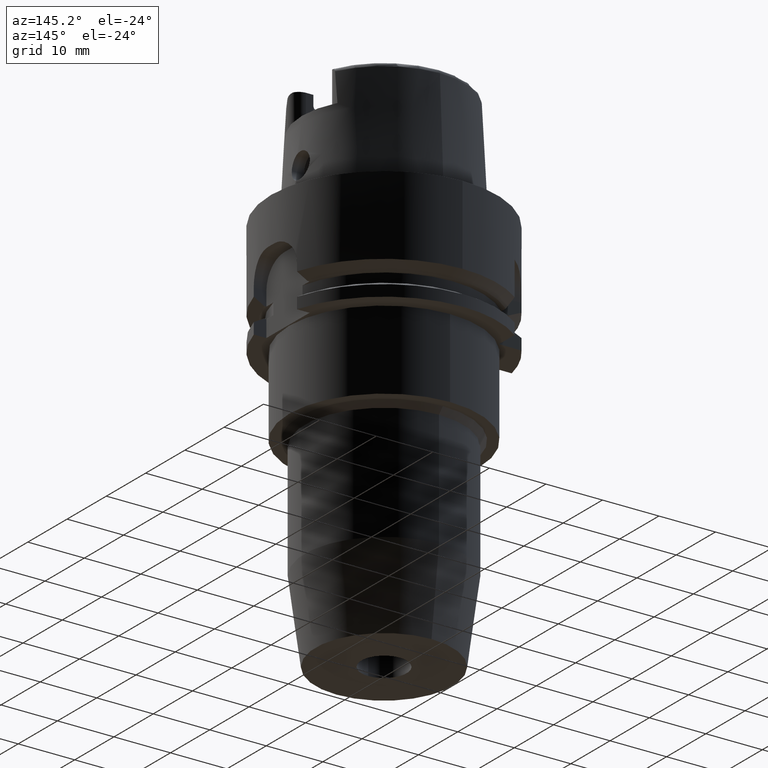
[diagram: clean part render]
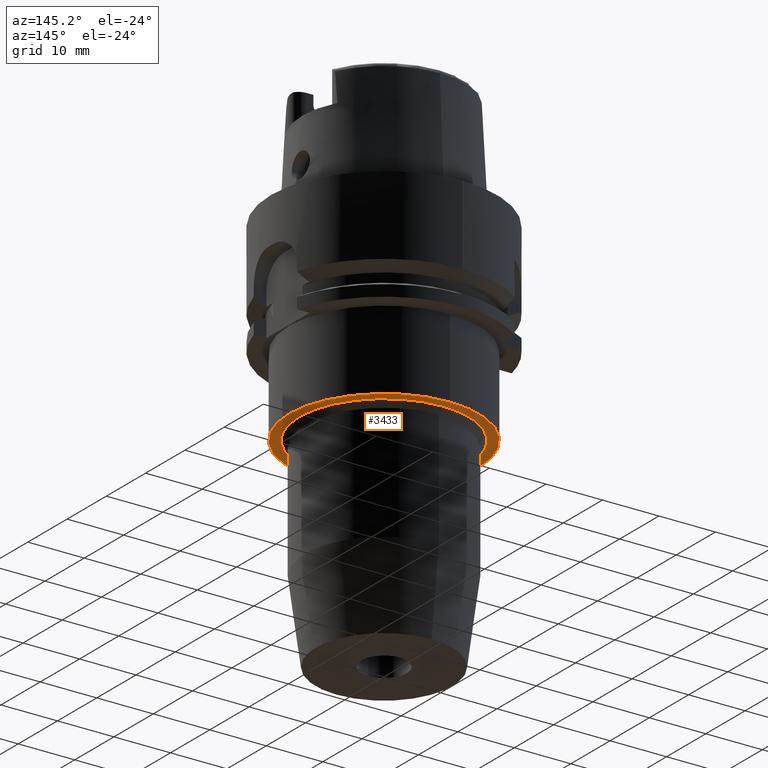
[diagram: same view with one face highlighted and labeled with its STEP entity id]
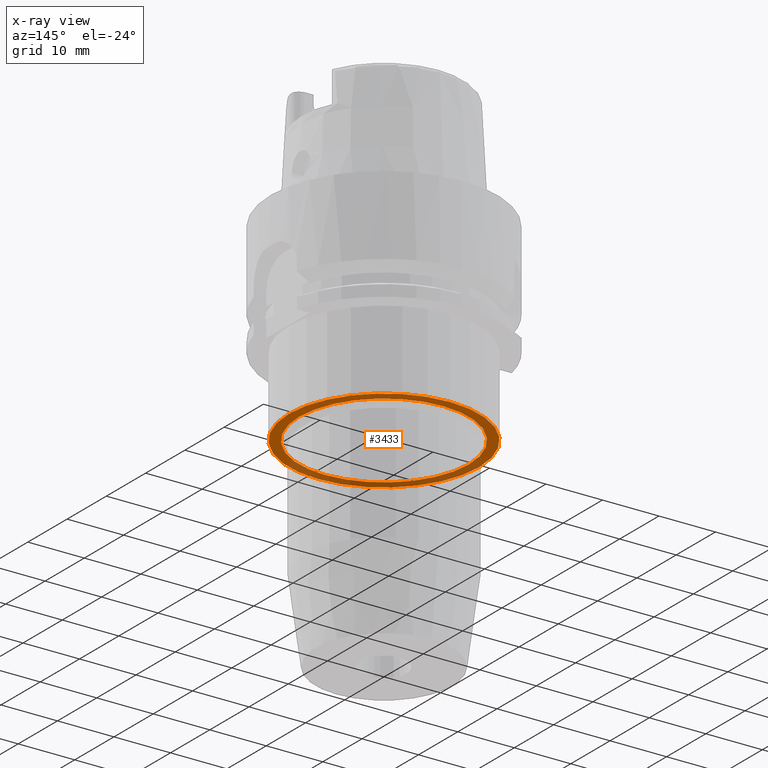
[diagram: x-ray of the same camera — body ghosted, the highlighted face saturated]
A machine part, auxiliary view. The second image highlights one B-rep face of the part: STEP entity #3433.
The next image is the same camera in x-ray: the body ghosted, the highlighted face saturated — about 33% of this face is hidden behind the body in this view.
In plain terms, the highlighted planar face has unit normal (0, 0, 1).
Its self-contained STEP definition (entity closure, byte-faithful):
#1107=CARTESIAN_POINT('',(0.E0,0.E0,-3.4E1));
#1108=DIRECTION('',(0.E0,0.E0,1.E0));
#1109=DIRECTION('',(0.E0,-1.E0,0.E0));
#1110=AXIS2_PLACEMENT_3D('',#1107,#1108,#1109);
#1115=CARTESIAN_POINT('',(0.E0,0.E0,-3.4E1));
#1116=DIRECTION('',(0.E0,0.E0,1.E0));
#1117=DIRECTION('',(0.E0,1.E0,0.E0));
#1118=AXIS2_PLACEMENT_3D('',#1115,#1116,#1117);
#1123=CARTESIAN_POINT('',(0.E0,0.E0,-3.4E1));
#1124=DIRECTION('',(0.E0,0.E0,-1.E0));
#1125=DIRECTION('',(0.E0,-1.E0,0.E0));
#1126=AXIS2_PLACEMENT_3D('',#1123,#1124,#1125);
#1131=CARTESIAN_POINT('',(0.E0,0.E0,-3.4E1));
#1132=DIRECTION('',(0.E0,0.E0,-1.E0));
#1133=DIRECTION('',(0.E0,1.E0,0.E0));
#1134=AXIS2_PLACEMENT_3D('',#1131,#1132,#1133);
#2446=CARTESIAN_POINT('',(0.E0,1.5E1,-3.4E1));
#2447=VERTEX_POINT('',#2446);
#2448=CARTESIAN_POINT('',(0.E0,-1.5E1,-3.4E1));
#2449=VERTEX_POINT('',#2448);
#2450=CARTESIAN_POINT('',(0.E0,-1.68E1,-3.4E1));
#2451=CARTESIAN_POINT('',(0.E0,1.68E1,-3.4E1));
#2452=VERTEX_POINT('',#2450);
#2453=VERTEX_POINT('',#2451);
#3418=CARTESIAN_POINT('',(0.E0,0.E0,-3.4E1));
#3419=DIRECTION('',(0.E0,0.E0,1.E0));
#3420=DIRECTION('',(0.E0,1.E0,0.E0));
#3421=AXIS2_PLACEMENT_3D('',#3418,#3419,#3420);
#3422=PLANE('',#3421);
#3424=ORIENTED_EDGE('',*,*,#3423,.T.);
#3426=ORIENTED_EDGE('',*,*,#3425,.T.);
#3427=EDGE_LOOP('',(#3424,#3426));
#3428=FACE_OUTER_BOUND('',#3427,.F.);
#3429=ORIENTED_EDGE('',*,*,#3411,.T.);
#3430=ORIENTED_EDGE('',*,*,#3400,.T.);
#3431=EDGE_LOOP('',(#3429,#3430));
#3432=FACE_BOUND('',#3431,.F.);
#1111=CIRCLE('',#1110,1.68E1);
#1119=CIRCLE('',#1118,1.68E1);
#1127=CIRCLE('',#1126,1.5E1);
#1135=CIRCLE('',#1134,1.5E1);
#3400=EDGE_CURVE('',#2447,#2449,#1135,.T.);
#3411=EDGE_CURVE('',#2449,#2447,#1127,.T.);
#3423=EDGE_CURVE('',#2452,#2453,#1111,.T.);
#3425=EDGE_CURVE('',#2453,#2452,#1119,.T.);
#3433=ADVANCED_FACE('',(#3428,#3432),#3422,.F.);